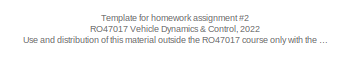
[diagram: root canvas - part 1/5, top left region]
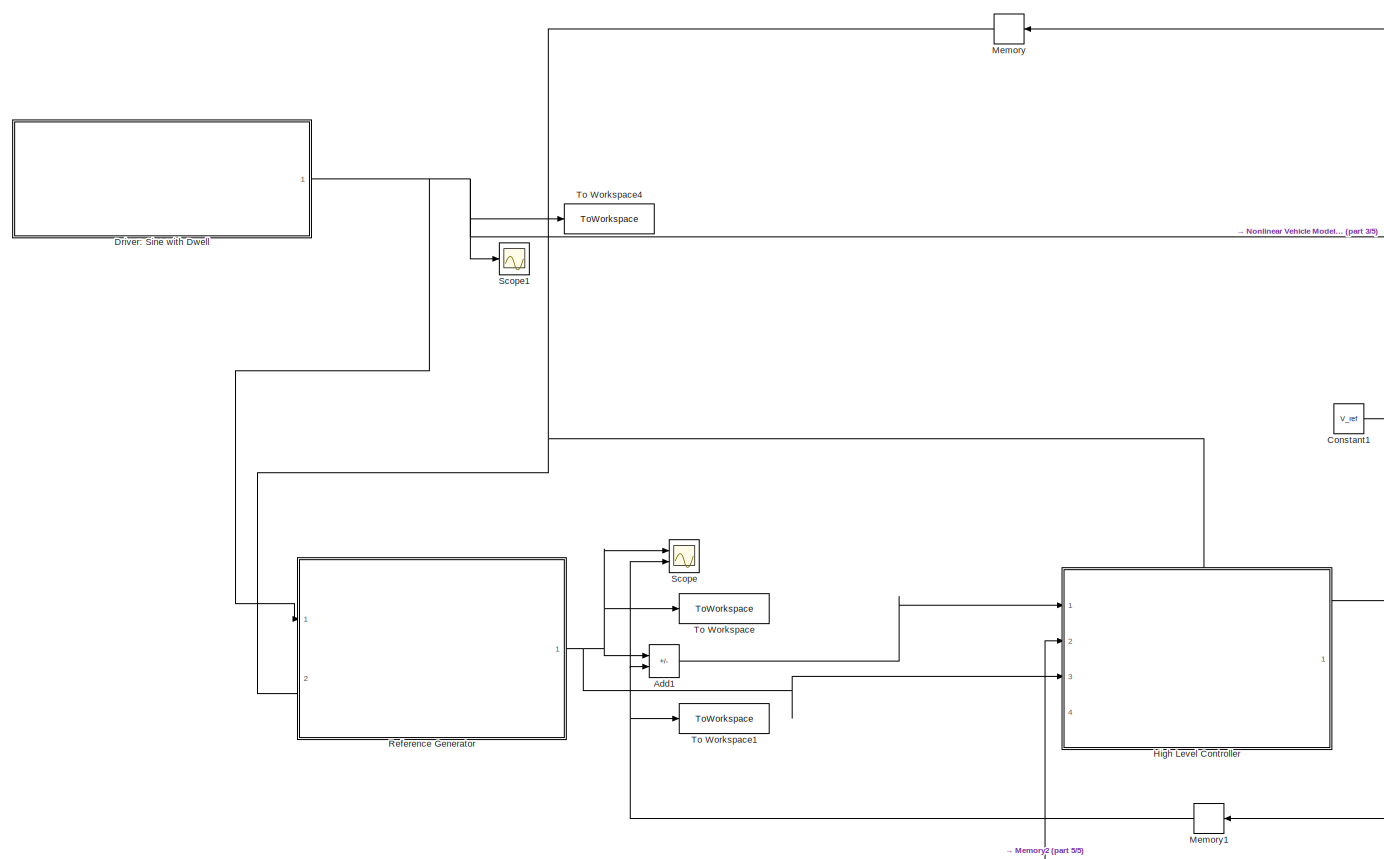
[diagram: root canvas - part 2/5, left side, full height]
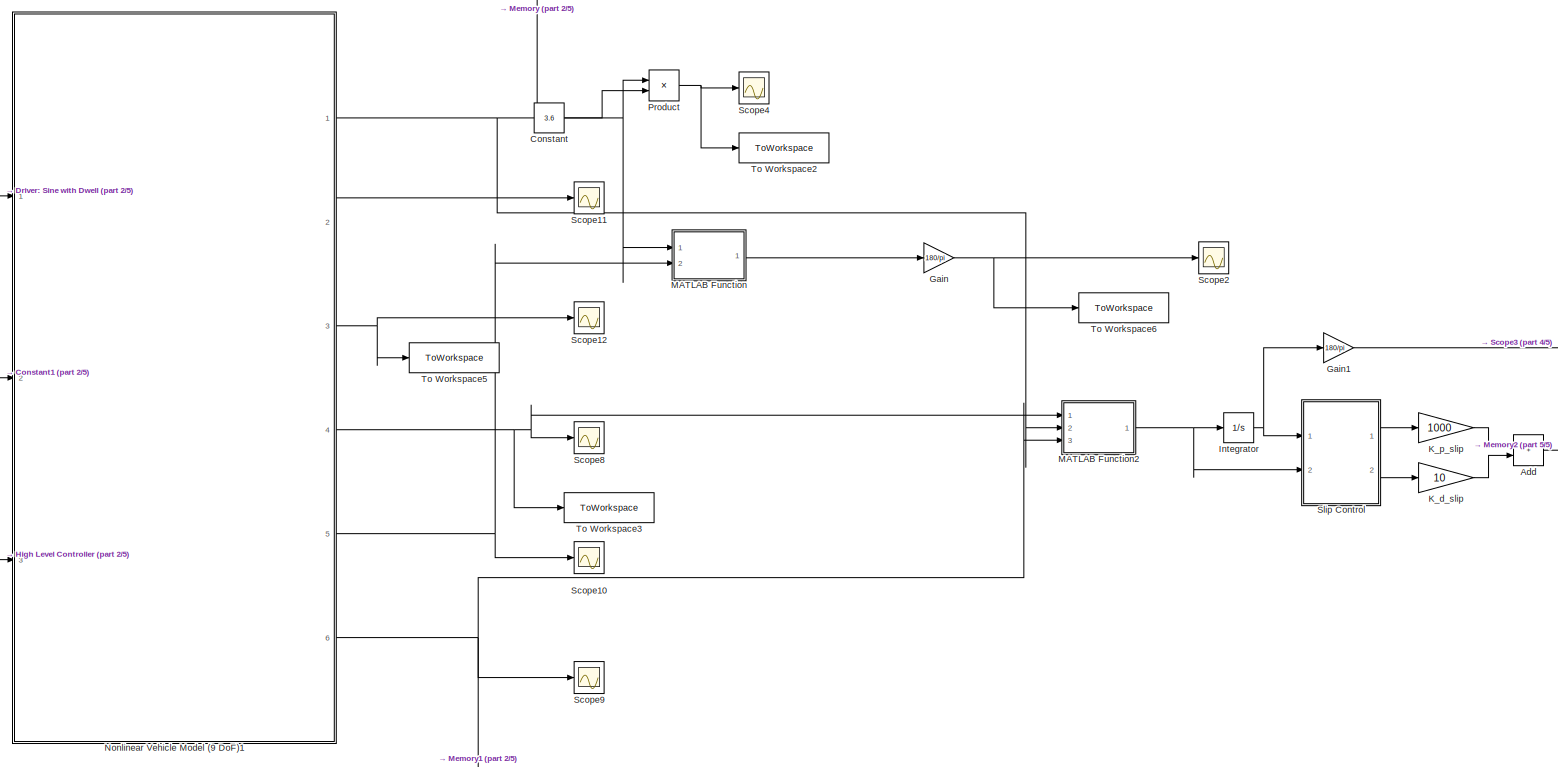
[diagram: root canvas - part 3/5, middle right region]
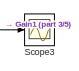
[diagram: root canvas - part 4/5, middle right region]
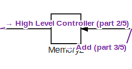
[diagram: root canvas - part 5/5, bottom center region]
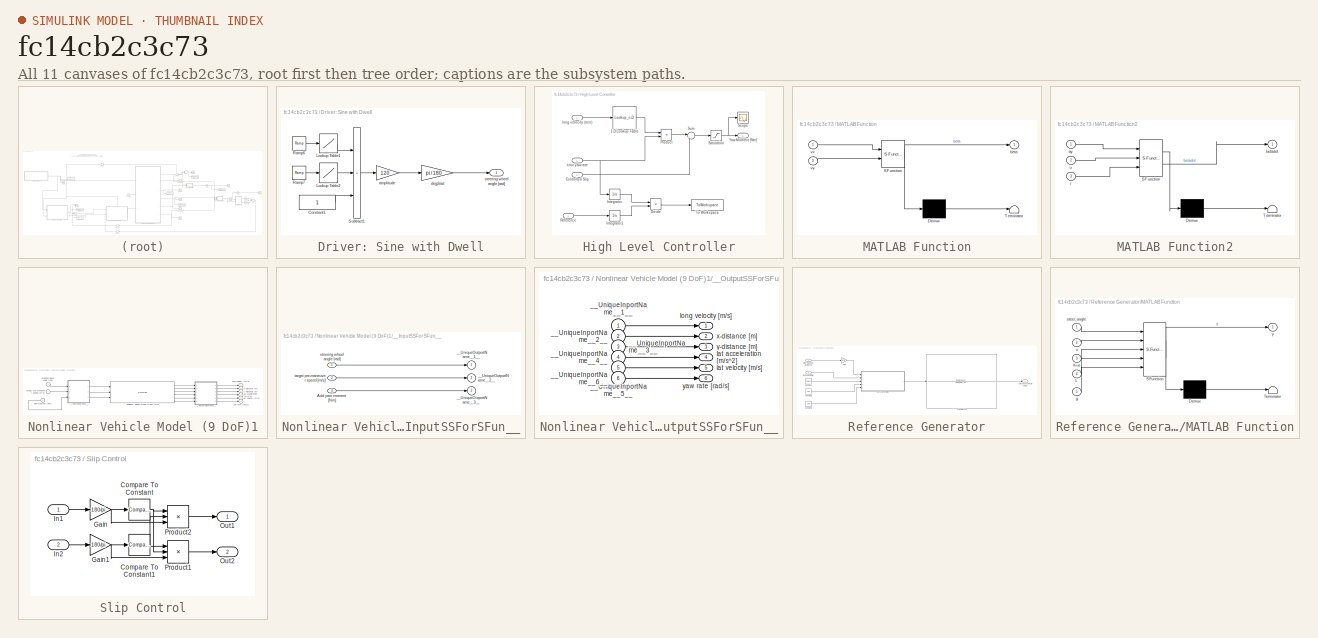
[diagram: thumbnail index - all 11 canvases of the model, root first then tree order]
MODEL slx_fc14cb2c3c73
KIND model
CONFIG AbsTol = auto
CONFIG EnableMultiTasking = on
CONFIG FixedStep = 1e-3
CONFIG MaxStep = auto
CONFIG MinStep = auto
CONFIG RelTol = 1e-3
CONFIG SampleTimeConstraint = Unconstrained
CONFIG SolverName = ode4
CONFIG StartTime = 0.0
CONFIG StopTime = 20
BLOCK [Sum] Add
  IconShape = rectangular
  Ports = [2, 1]
BLOCK [Sum] Add1
  IconShape = rectangular
  Inputs = +-
  Ports = [2, 1]
BLOCK [Constant] Constant
  Value = 3.6
BLOCK [Constant] Constant1
  Value = V_ref
BLOCK [SubSystem] Driver: Sine with Dwell
  Ports = [0, 1]
  RequestExecContextInheritance = off
BLOCK [Constant] Driver: Sine with Dwell/Constant1
BLOCK [Lookup] Driver: Sine with Dwell/Lookup Table1
  InputValues = [0:0.1:3*pi/2 3*pi/2+eps]*0.7
  LookUpMeth = Interpolation-Use End Values
  SaturateOnIntegerOverflow = off
  Table = sin([0:0.1:3*pi/2 3*pi/2+eps])
BLOCK [Lookup] Driver: Sine with Dwell/Lookup Table2
  InputValues = [3*pi/2:0.1:2*pi 2*pi+eps]*0.7
  LookUpMeth = Interpolation-Use End Values
  SaturateOnIntegerOverflow = off
  Table = sin([3*pi/2:0.1:2*pi 2*pi+eps])
BLOCK [Reference] Driver: Sine with Dwell/Ramp6  REF=simulink/Sources/Ramp
  Ports = [0, 1]
  SourceBlock = simulink/Sources/Ramp
  SourceProductBaseCode = SL
  SourceType = Ramp
BLOCK [Reference] Driver: Sine with Dwell/Ramp7  REF=simulink/Sources/Ramp
  Ports = [0, 1]
  SourceBlock = simulink/Sources/Ramp
  SourceProductBaseCode = SL
  SourceType = Ramp
BLOCK [Sum] Driver: Sine with Dwell/Subtract1
  IconShape = rectangular
  Inputs = +++
  Ports = [3, 1]
BLOCK [Gain] Driver: Sine with Dwell/amplitude
  Gain = 120
BLOCK [Gain] Driver: Sine with Dwell/deg2rad
  Gain = pi / 180
BLOCK [Outport] Driver: Sine with Dwell/steering wheel angle [rad]
  VectorParamsAs1DForOutWhenUnconnected = off
BLOCK [Gain] Gain
  Gain = 180/pi
BLOCK [Gain] Gain1
  Gain = 180/pi
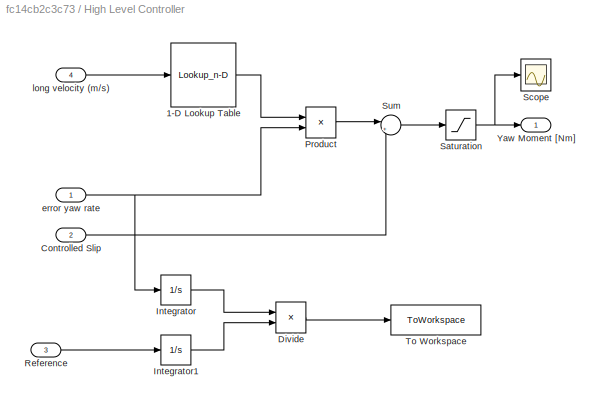
BLOCK [SubSystem] High Level Controller
  PortSchema = {"entries":[{"content":{"sides":[{"content":{"connectorIds":["In1","In2","In3"]},"type":"ConnectorPlacement.EquallySpacedRectSide","uuid":"b384b34b-9bc0-4dc4-b497-a1a499aa981c"},{"content":{"connectorIds":["Out1"],"side":"RIGHT"},"type":"ConnectorPlacement.EquallySpacedRectSide","uuid":"f3fdbba3-f0c8-4c56-b5d3-57c2637e329a"},{"content":{"connectorIds":["In4"],"side":"TOP"},"type":"ConnectorPlaceme...<+257ch>
  Ports = [4, 1]
  RequestExecContextInheritance = off
BLOCK [Lookup_n-D] High Level Controller/1-D Lookup Table
  BreakpointsForDimension1 = LQR_Vx_ref
  InputPortMap = u0
  InternalRulePriority = Speed
  NumberOfTableDimensions = 1
  Ports = [1, 1]
  RndMeth = Simplest
  Table = LQR_K(2,:)
BLOCK [Inport] High Level Controller/Controlled Slip
  Port = 2
BLOCK [Product] High Level Controller/Divide
  Inputs = */
  Ports = [2, 1]
BLOCK [Integrator] High Level Controller/Integrator
  Ports = [1, 1]
BLOCK [Integrator] High Level Controller/Integrator1
  Ports = [1, 1]
BLOCK [Product] High Level Controller/Product
  Ports = [2, 1]
BLOCK [Inport] High Level Controller/Reference
  Port = 3
BLOCK [Saturate] High Level Controller/Saturation
  LowerLimit = -8000
  UpperLimit = 8000
BLOCK [Scope] High Level Controller/Scope
  Floating = off
  NumInputPorts = 1
  Ports = [1]
  ScopeSpecificationString = Simulink.scopes.TimeScopeBlockCfg('CurrentConfiguration', extmgr.ConfigurationSet(extmgr.Configuration('Core','General UI',true),extmgr.Configuration('Core','Source UI',true),extmgr.Configuration('Sources','WiredSimulink',true,'DataLoggingVariableName','ScopeData1'),extmgr.Configuration('Visuals','Time Domain',true,'SerializedDisplays',{struct('MinYLimReal','-812.5','MaxYLimReal','2312.5','YLabelR...<+1363ch>
BLOCK [Sum] High Level Controller/Sum
  Inputs = |++
  Ports = [2, 1]
BLOCK [ToWorkspace] High Level Controller/To Workspace
  FixptAsFi = on
  MaxDataPoints = inf
  Ports = [1]
  SampleTime = -1
  SaveFormat = Timeseries
  VariableName = yaw_velocity_metric_pd
BLOCK [Outport] High Level Controller/Yaw Moment [Nm]
  VectorParamsAs1DForOutWhenUnconnected = off
BLOCK [Inport] High Level Controller/error yaw rate
BLOCK [Inport] High Level Controller/long velocity (m//s)
  Port = 4
BLOCK [Integrator] Integrator
  Ports = [1, 1]
BLOCK [Gain] K_d_slip
  Gain = 10
BLOCK [Gain] K_p_slip
  Gain = 1000
BLOCK [SubSystem] MATLAB Function
  ErrorFcn = Stateflow.Translate.translate
  PermitHierarchicalResolution = ExplicitOnly
  Ports = [2, 1]
  RequestExecContextInheritance = off
  SFBlockType = MATLAB Function
  TreatAsAtomicUnit = on
BLOCK [Demux] MATLAB Function/ Demux 
  Outputs = 1
  Ports = [1, 1]
BLOCK [S-Function] MATLAB Function/ SFunction 
  EnableBusSupport = on
  FunctionName = sf_sfun
  PortCounts = [2 2]
  Ports = [2, 2]
  SFcnIsStateOwnerBlock = off
  SFunctionDeploymentMode = off
  Tag = Stateflow S-Function 2
BLOCK [Terminator] MATLAB Function/ Terminator 
BLOCK [Outport] MATLAB Function/beta
BLOCK [Inport] MATLAB Function/vx
BLOCK [Inport] MATLAB Function/vy
  Port = 2
BLOCK [SubSystem] MATLAB Function2
  ErrorFcn = Stateflow.Translate.translate
  PermitHierarchicalResolution = ExplicitOnly
  Ports = [3, 1]
  RequestExecContextInheritance = off
  SFBlockType = MATLAB Function
  TreatAsAtomicUnit = on
BLOCK [Demux] MATLAB Function2/ Demux 
  Outputs = 1
  Ports = [1, 1]
BLOCK [S-Function] MATLAB Function2/ SFunction 
  EnableBusSupport = on
  FunctionName = sf_sfun
  PortCounts = [3 2]
  Ports = [3, 2]
  SFcnIsStateOwnerBlock = off
  SFunctionDeploymentMode = off
  Tag = Stateflow S-Function 3
BLOCK [Terminator] MATLAB Function2/ Terminator 
BLOCK [Inport] MATLAB Function2/ay
BLOCK [Outport] MATLAB Function2/betadot
BLOCK [Inport] MATLAB Function2/r
  Port = 3
BLOCK [Inport] MATLAB Function2/u
  Port = 2
BLOCK [Memory] Memory
BLOCK [Memory] Memory1
BLOCK [Memory] Memory2
BLOCK [SubSystem] Nonlinear Vehicle Model (9 DoF)1
  Ports = [3, 6]
  RequestExecContextInheritance = off
BLOCK [S-Function] Nonlinear Vehicle Model (9 DoF)1/Nonlinear Vehicle Model (9 DoF)_sfcn
  CopyFcn = if ~strcmp(get_param(gcb,'Linkstatus'),'none') && ...\n~strcmp(get_param(gcb,'Linkstatus'),'implicit')      \n  set_param(gcb,'LinkStatus','none');                \nend
  EnableBusSupport = off
  FunctionName = Nonlinear_sf
  Ports = [3, 6]
  SFcnIsStateOwnerBlock = off
  SFunctionDeploymentMode = off
BLOCK [Inport] Nonlinear Vehicle Model (9 DoF)1/Yaw moment [Nm]
  Port = 3
BLOCK [SubSystem] Nonlinear Vehicle Model (9 DoF)1/__InputSSForSFun__
  PermitHierarchicalResolution = ExplicitOnly
  Ports = [3, 3]
  RequestExecContextInheritance = off
BLOCK [Inport] Nonlinear Vehicle Model (9 DoF)1/__InputSSForSFun__/Add yaw moment [Nm]
  Port = 3
BLOCK [Outport] Nonlinear Vehicle Model (9 DoF)1/__InputSSForSFun__/__UniqueOutportName__1__
BLOCK [Outport] Nonlinear Vehicle Model (9 DoF)1/__InputSSForSFun__/__UniqueOutportName__2__
  Port = 2
BLOCK [Outport] Nonlinear Vehicle Model (9 DoF)1/__InputSSForSFun__/__UniqueOutportName__3__
  Port = 3
BLOCK [Inport] Nonlinear Vehicle Model (9 DoF)1/__InputSSForSFun__/steering wheel angle [rad]
BLOCK [Inport] Nonlinear Vehicle Model (9 DoF)1/__InputSSForSFun__/target pre-maneuver speed [m//s]
  Port = 2
BLOCK [SubSystem] Nonlinear Vehicle Model (9 DoF)1/__OutputSSForSFun__
  PermitHierarchicalResolution = ExplicitOnly
  Ports = [6, 6]
  RequestExecContextInheritance = off
BLOCK [Inport] Nonlinear Vehicle Model (9 DoF)1/__OutputSSForSFun__/__UniqueInportName__1__
BLOCK [Inport] Nonlinear Vehicle Model (9 DoF)1/__OutputSSForSFun__/__UniqueInportName__2__
  Port = 2
BLOCK [Inport] Nonlinear Vehicle Model (9 DoF)1/__OutputSSForSFun__/__UniqueInportName__3__
  Port = 3
BLOCK [Inport] Nonlinear Vehicle Model (9 DoF)1/__OutputSSForSFun__/__UniqueInportName__4__
  Port = 4
BLOCK [Inport] Nonlinear Vehicle Model (9 DoF)1/__OutputSSForSFun__/__UniqueInportName__5__
  Port = 5
BLOCK [Inport] Nonlinear Vehicle Model (9 DoF)1/__OutputSSForSFun__/__UniqueInportName__6__
  Port = 6
BLOCK [Outport] Nonlinear Vehicle Model (9 DoF)1/__OutputSSForSFun__/lat acceleration [m//s^2]
  Port = 4
  VectorParamsAs1DForOutWhenUnconnected = off
BLOCK [Outport] Nonlinear Vehicle Model (9 DoF)1/__OutputSSForSFun__/lat velocity [m//s]
  Port = 5
  VectorParamsAs1DForOutWhenUnconnected = off
BLOCK [Outport] Nonlinear Vehicle Model (9 DoF)1/__OutputSSForSFun__/long velocity [m//s]
  VectorParamsAs1DForOutWhenUnconnected = off
BLOCK [Outport] Nonlinear Vehicle Model (9 DoF)1/__OutputSSForSFun__/x-distance [m]
  Port = 2
  VectorParamsAs1DForOutWhenUnconnected = off
BLOCK [Outport] Nonlinear Vehicle Model (9 DoF)1/__OutputSSForSFun__/y-distance [m]
  Port = 3
  VectorParamsAs1DForOutWhenUnconnected = off
BLOCK [Outport] Nonlinear Vehicle Model (9 DoF)1/__OutputSSForSFun__/yaw rate [rad//s]
  Port = 6
  VectorParamsAs1DForOutWhenUnconnected = off
BLOCK [Outport] Nonlinear Vehicle Model (9 DoF)1/lat acceleration [m//s^2]
  Port = 4
  VectorParamsAs1DForOutWhenUnconnected = off
BLOCK [Outport] Nonlinear Vehicle Model (9 DoF)1/lat velocity [m//s]
  Port = 5
  VectorParamsAs1DForOutWhenUnconnected = off
BLOCK [Outport] Nonlinear Vehicle Model (9 DoF)1/long velocity [m//s]
  VectorParamsAs1DForOutWhenUnconnected = off
BLOCK [Inport] Nonlinear Vehicle Model (9 DoF)1/steering wheel angle [rad]
BLOCK [Inport] Nonlinear Vehicle Model (9 DoF)1/target pre-maneuver speed [m//s]
  Port = 2
BLOCK [Outport] Nonlinear Vehicle Model (9 DoF)1/x-distance [m]
  Port = 2
  VectorParamsAs1DForOutWhenUnconnected = off
BLOCK [Outport] Nonlinear Vehicle Model (9 DoF)1/y-distance [m]
  Port = 3
  VectorParamsAs1DForOutWhenUnconnected = off
BLOCK [Outport] Nonlinear Vehicle Model (9 DoF)1/yaw rate [rad//s]
  Port = 6
  VectorParamsAs1DForOutWhenUnconnected = off
BLOCK [Product] Product
  Ports = [2, 1]
BLOCK [SubSystem] Reference Generator
  Ports = [2, 1]
  RequestExecContextInheritance = off
BLOCK [Constant] Reference Generator/Constant
  Value = par.Kus
BLOCK [Constant] Reference Generator/Constant1
  Value = par.L
BLOCK [Constant] Reference Generator/Constant2
  Value = par.g
BLOCK [Gain] Reference Generator/Gain
  Gain = 1/par.i_steer
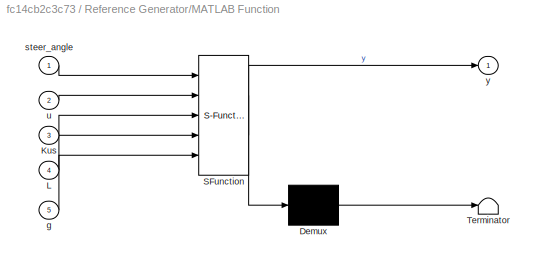
BLOCK [SubSystem] Reference Generator/MATLAB Function
  ErrorFcn = Stateflow.Translate.translate
  PermitHierarchicalResolution = ExplicitOnly
  Ports = [5, 1]
  RequestExecContextInheritance = off
  SFBlockType = MATLAB Function
  TreatAsAtomicUnit = on
BLOCK [Demux] Reference Generator/MATLAB Function/ Demux 
  Outputs = 1
  Ports = [1, 1]
BLOCK [S-Function] Reference Generator/MATLAB Function/ SFunction 
  EnableBusSupport = on
  FunctionName = sf_sfun
  PortCounts = [5 2]
  Ports = [5, 2]
  SFcnIsStateOwnerBlock = off
  SFunctionDeploymentMode = off
  Tag = Stateflow S-Function 1
BLOCK [Terminator] Reference Generator/MATLAB Function/ Terminator 
BLOCK [Inport] Reference Generator/MATLAB Function/Kus
  Port = 3
BLOCK [Inport] Reference Generator/MATLAB Function/L
  Port = 4
BLOCK [Inport] Reference Generator/MATLAB Function/g
  Port = 5
BLOCK [Inport] Reference Generator/MATLAB Function/steer_angle
BLOCK [Inport] Reference Generator/MATLAB Function/u
  Port = 2
BLOCK [Outport] Reference Generator/MATLAB Function/y
BLOCK [TransferFcn] Reference Generator/Transfer Fcn
  Denominator = [coeff_den_s2 coeff_den_s 1]
  Numerator = [coeff_num_s 1]
BLOCK [Inport] Reference Generator/long velocity [m//s]
  Port = 2
BLOCK [Outport] Reference Generator/reference yaw rate [rad//s]
  VectorParamsAs1DForOutWhenUnconnected = off
BLOCK [Inport] Reference Generator/steering wheel angle [rad]
BLOCK [Scope] Scope
  Floating = off
  NumInputPorts = 2
  Ports = [2]
  ScopeSpecificationString = Simulink.scopes.TimeScopeBlockCfg('CurrentConfiguration', extmgr.ConfigurationSet(extmgr.Configuration('Core','General UI',true),extmgr.Configuration('Core','Source UI',true),extmgr.Configuration('Sources','WiredSimulink',true,'DataLoggingVariableName','ScopeData1'),extmgr.Configuration('Visuals','Time Domain',true,'SerializedDisplays',{struct('MinYLimReal','-1.68729','MaxYLimReal','1.57864','YLab...<+1461ch>
BLOCK [Scope] Scope1
  Floating = off
  NumInputPorts = 1
  Ports = [1]
  ScopeSpecificationString = Simulink.scopes.TimeScopeBlockCfg('CurrentConfiguration', extmgr.ConfigurationSet(extmgr.Configuration('Core','General UI',true),extmgr.Configuration('Core','Source UI',true),extmgr.Configuration('Sources','WiredSimulink',true,'DataLoggingVariableName','ScopeData1'),extmgr.Configuration('Visuals','Time Domain',true,'SerializedDisplays',{struct('MinYLimReal','-2.61787','MaxYLimReal','2.61688','YLab...<+1455ch>
BLOCK [Scope] Scope10
  Floating = off
  NumInputPorts = 1
  Ports = [1]
  ScopeSpecificationString = Simulink.scopes.TimeScopeBlockCfg('CurrentConfiguration', extmgr.ConfigurationSet(extmgr.Configuration('Core','General UI',true),extmgr.Configuration('Core','Source UI',true),extmgr.Configuration('Sources','WiredSimulink',true,'DataLoggingVariableName','ScopeData2'),extmgr.Configuration('Visuals','Time Domain',true,'SerializedDisplays',{struct('MinYLimReal','-1.51646','MaxYLimReal','1.66759','YLab...<+1422ch>
BLOCK [Scope] Scope11
  Floating = off
  NumInputPorts = 1
  Ports = [1]
  ScopeSpecificationString = Simulink.scopes.TimeScopeBlockCfg('CurrentConfiguration', extmgr.ConfigurationSet(extmgr.Configuration('Core','General UI',true),extmgr.Configuration('Core','Source UI',true),extmgr.Configuration('Sources','WiredSimulink',true,'DataLoggingVariableName','ScopeData3'),extmgr.Configuration('Visuals','Time Domain',true,'SerializedDisplays',{struct('MinYLimReal','-36.5234','MaxYLimReal','328.7106','YLa...<+1426ch>
BLOCK [Scope] Scope12
  Floating = off
  NumInputPorts = 1
  Ports = [1]
  ScopeSpecificationString = Simulink.scopes.TimeScopeBlockCfg('CurrentConfiguration', extmgr.ConfigurationSet(extmgr.Configuration('Core','General UI',true),extmgr.Configuration('Core','Source UI',true),extmgr.Configuration('Sources','WiredSimulink',true,'DataLoggingVariableName','ScopeData4'),extmgr.Configuration('Visuals','Time Domain',true,'SerializedDisplays',{struct('MinYLimReal','-11.73151','MaxYLimReal','8.46333','YLa...<+1474ch>
BLOCK [Scope] Scope2
  Floating = off
  NumInputPorts = 1
  Ports = [1]
  ScopeSpecificationString = Simulink.scopes.TimeScopeBlockCfg('CurrentConfiguration', extmgr.ConfigurationSet(extmgr.Configuration('Core','General UI',true),extmgr.Configuration('Core','Source UI',true),extmgr.Configuration('Sources','WiredSimulink',true,'DataLoggingVariableName','ScopeData1'),extmgr.Configuration('Visuals','Time Domain',true,'SerializedDisplays',{struct('MinYLimReal','-61.84291','MaxYLimReal','8.03478','YLa...<+1440ch>
BLOCK [Scope] Scope3
  Floating = off
  NumInputPorts = 1
  Ports = [1]
  ScopeSpecificationString = Simulink.scopes.TimeScopeBlockCfg('CurrentConfiguration', extmgr.ConfigurationSet(extmgr.Configuration('Core','General UI',true),extmgr.Configuration('Core','Source UI',true),extmgr.Configuration('Sources','WiredSimulink',true,'DataLoggingVariableName','ScopeData1'),extmgr.Configuration('Visuals','Time Domain',true,'SerializedDisplays',{struct('MinYLimReal','-51.10368','MaxYLimReal','103.12141','Y...<+1447ch>
BLOCK [Scope] Scope4
  Floating = off
  NumInputPorts = 1
  Ports = [1]
  ScopeSpecificationString = Simulink.scopes.TimeScopeBlockCfg('CurrentConfiguration', extmgr.ConfigurationSet(extmgr.Configuration('Core','General UI',true),extmgr.Configuration('Core','Source UI',true),extmgr.Configuration('Sources','WiredSimulink',true,'DataLoggingVariableName','ScopeData5'),extmgr.Configuration('Visuals','Time Domain',true,'SerializedDisplays',{struct('MinYLimReal','43.69848','MaxYLimReal','106.3878','YLa...<+1445ch>
BLOCK [Scope] Scope8
  Floating = off
  NumInputPorts = 1
  Ports = [1]
  ScopeSpecificationString = Simulink.scopes.TimeScopeBlockCfg('CurrentConfiguration', extmgr.ConfigurationSet(extmgr.Configuration('Core','General UI',true),extmgr.Configuration('Core','Source UI',true),extmgr.Configuration('Sources','WiredSimulink',true,'DataLoggingVariableName','ScopeData6'),extmgr.Configuration('Visuals','Time Domain',true,'SerializedDisplays',{struct('MinYLimReal','-12.87563','MaxYLimReal','15.98929','YL...<+1472ch>
BLOCK [Scope] Scope9
  Floating = off
  NumInputPorts = 1
  Ports = [1]
  ScopeSpecificationString = Simulink.scopes.TimeScopeBlockCfg('CurrentConfiguration', extmgr.ConfigurationSet(extmgr.Configuration('Core','General UI',true),extmgr.Configuration('Core','Source UI',true),extmgr.Configuration('Sources','WiredSimulink',true),extmgr.Configuration('Visuals','Time Domain',true,'SerializedDisplays',{struct('MinYLimReal','-0.97718','MaxYLimReal','1.00483','YLabelReal','','MinYLimMag','0.00000','MaxY...<+1408ch>
BLOCK [SubSystem] Slip Control
  Ports = [2, 2]
  RequestExecContextInheritance = off
BLOCK [Reference] Slip Control/Compare To Constant  REF=simulink/Logic and Bit
Operations/Compare
To Constant
  Ports = [1, 1]
  SourceBlock = simulink/Logic and Bit\nOperations/Compare\nTo Constant
  SourceProductBaseCode = SL
  SourceType = Compare To Constant
BLOCK [Reference] Slip Control/Compare To Constant1  REF=simulink/Logic and Bit
Operations/Compare
To Constant
  Ports = [1, 1]
  SourceBlock = simulink/Logic and Bit\nOperations/Compare\nTo Constant
  SourceProductBaseCode = SL
  SourceType = Compare To Constant
BLOCK [Gain] Slip Control/Gain
  Gain = 180/pi
BLOCK [Gain] Slip Control/Gain1
  Gain = 180/pi
BLOCK [Inport] Slip Control/In1
BLOCK [Inport] Slip Control/In2
  Port = 2
BLOCK [Outport] Slip Control/Out1
BLOCK [Outport] Slip Control/Out2
  Port = 2
BLOCK [Product] Slip Control/Product1
  Inputs = 3
  Ports = [3, 1]
BLOCK [Product] Slip Control/Product2
  Inputs = 3
  Ports = [3, 1]
BLOCK [ToWorkspace] To Workspace
  FixptAsFi = on
  MaxDataPoints = inf
  Ports = [1]
  SampleTime = -1
  SaveFormat = Timeseries
  VariableName = ref_yaw_pd
BLOCK [ToWorkspace] To Workspace1
  FixptAsFi = on
  MaxDataPoints = inf
  Ports = [1]
  SampleTime = -1
  SaveFormat = Timeseries
  VariableName = yaw_pd
BLOCK [ToWorkspace] To Workspace2
  FixptAsFi = on
  MaxDataPoints = inf
  Ports = [1]
  SampleTime = -1
  SaveFormat = Timeseries
  VariableName = long_vel
BLOCK [ToWorkspace] To Workspace3
  FixptAsFi = on
  MaxDataPoints = inf
  Ports = [1]
  SampleTime = -1
  SaveFormat = Timeseries
  VariableName = lat_acc_pd
BLOCK [ToWorkspace] To Workspace4
  FixptAsFi = on
  MaxDataPoints = inf
  Ports = [1]
  SampleTime = -1
  SaveFormat = Timeseries
  VariableName = steer_angle
BLOCK [ToWorkspace] To Workspace5
  FixptAsFi = on
  MaxDataPoints = inf
  Ports = [1]
  SampleTime = -1
  SaveFormat = Timeseries
  VariableName = ydist_pd
BLOCK [ToWorkspace] To Workspace6
  FixptAsFi = on
  MaxDataPoints = inf
  Ports = [1]
  SampleTime = -1
  SaveFormat = Timeseries
  VariableName = beta_pd
ANNOTATION (root): Template for homework assignment #2 RO47017 Vehicle Dynamics & Control, 2022 Use and distribution of this material outside the RO47017 course only with the permission of the course coordinator
LINE Add1:1 -> High Level Controller:1
LINE Add:1 -> Memory2:1
LINE Constant1:1 -> Nonlinear Vehicle Model (9 DoF)1:2
LINE Constant:1 -> Product:2
LINE Driver: Sine with Dwell/Constant1:1 -> Driver: Sine with Dwell/Subtract1:3
LINE Driver: Sine with Dwell/Lookup Table1:1 -> Driver: Sine with Dwell/Subtract1:1
LINE Driver: Sine with Dwell/Lookup Table2:1 -> Driver: Sine with Dwell/Subtract1:2
LINE Driver: Sine with Dwell/Ramp6:1 -> Driver: Sine with Dwell/Lookup Table1:1
LINE Driver: Sine with Dwell/Ramp7:1 -> Driver: Sine with Dwell/Lookup Table2:1
LINE Driver: Sine with Dwell/Subtract1:1 -> Driver: Sine with Dwell/amplitude:1
LINE Driver: Sine with Dwell/amplitude:1 -> Driver: Sine with Dwell/deg2rad:1
LINE Driver: Sine with Dwell/deg2rad:1 -> Driver: Sine with Dwell/steering wheel angle [rad]:1
NET Driver: Sine with Dwell:1 -> Nonlinear Vehicle Model (9 DoF)1:1, Reference Generator:1, Scope1:1, To Workspace4:1
LINE Gain1:1 -> Scope3:1
NET Gain:1 -> Scope2:1, To Workspace6:1
LINE High Level Controller/1-D Lookup Table:1 -> High Level Controller/Product:1
LINE High Level Controller/Controlled Slip:1 -> High Level Controller/Sum:2
LINE High Level Controller/Divide:1 -> High Level Controller/To Workspace:1
LINE High Level Controller/Integrator1:1 -> High Level Controller/Divide:2
LINE High Level Controller/Integrator:1 -> High Level Controller/Divide:1
LINE High Level Controller/Product:1 -> High Level Controller/Sum:1
LINE High Level Controller/Reference:1 -> High Level Controller/Integrator1:1
NET High Level Controller/Saturation:1 -> High Level Controller/Scope:1, High Level Controller/Yaw Moment [Nm]:1
LINE High Level Controller/Sum:1 -> High Level Controller/Saturation:1
NET High Level Controller/error yaw rate:1 -> High Level Controller/Integrator:1, High Level Controller/Product:2
LINE High Level Controller/long velocity (m//s):1 -> High Level Controller/1-D Lookup Table:1
LINE High Level Controller:1 -> Nonlinear Vehicle Model (9 DoF)1:3
NET Integrator:1 -> Gain1:1, Slip Control:1
LINE K_d_slip:1 -> Add:2
LINE K_p_slip:1 -> Add:1
NET MATLAB Function2:1 -> Integrator:1, Slip Control:2
LINE MATLAB Function:1 -> Gain:1
NET Memory1:1 -> Add1:2, Scope:2, To Workspace1:1
LINE Memory2:1 -> High Level Controller:2
NET Memory:1 -> High Level Controller:4, Reference Generator:2
LINE Nonlinear Vehicle Model (9 DoF)1/Nonlinear Vehicle Model (9 DoF)_sfcn:1 -> Nonlinear Vehicle Model (9 DoF)1/__OutputSSForSFun__:1
LINE Nonlinear Vehicle Model (9 DoF)1/Nonlinear Vehicle Model (9 DoF)_sfcn:2 -> Nonlinear Vehicle Model (9 DoF)1/__OutputSSForSFun__:2
LINE Nonlinear Vehicle Model (9 DoF)1/Nonlinear Vehicle Model (9 DoF)_sfcn:3 -> Nonlinear Vehicle Model (9 DoF)1/__OutputSSForSFun__:3
LINE Nonlinear Vehicle Model (9 DoF)1/Nonlinear Vehicle Model (9 DoF)_sfcn:4 -> Nonlinear Vehicle Model (9 DoF)1/__OutputSSForSFun__:4
LINE Nonlinear Vehicle Model (9 DoF)1/Nonlinear Vehicle Model (9 DoF)_sfcn:5 -> Nonlinear Vehicle Model (9 DoF)1/__OutputSSForSFun__:5
LINE Nonlinear Vehicle Model (9 DoF)1/Nonlinear Vehicle Model (9 DoF)_sfcn:6 -> Nonlinear Vehicle Model (9 DoF)1/__OutputSSForSFun__:6
LINE Nonlinear Vehicle Model (9 DoF)1/Yaw moment [Nm]:1 -> Nonlinear Vehicle Model (9 DoF)1/__InputSSForSFun__:3
LINE Nonlinear Vehicle Model (9 DoF)1/__InputSSForSFun__/Add yaw moment [Nm]:1 -> Nonlinear Vehicle Model (9 DoF)1/__InputSSForSFun__/__UniqueOutportName__3__:1
LINE Nonlinear Vehicle Model (9 DoF)1/__InputSSForSFun__/steering wheel angle [rad]:1 -> Nonlinear Vehicle Model (9 DoF)1/__InputSSForSFun__/__UniqueOutportName__1__:1
LINE Nonlinear Vehicle Model (9 DoF)1/__InputSSForSFun__/target pre-maneuver speed [m//s]:1 -> Nonlinear Vehicle Model (9 DoF)1/__InputSSForSFun__/__UniqueOutportName__2__:1
LINE Nonlinear Vehicle Model (9 DoF)1/__InputSSForSFun__:1 -> Nonlinear Vehicle Model (9 DoF)1/Nonlinear Vehicle Model (9 DoF)_sfcn:1
LINE Nonlinear Vehicle Model (9 DoF)1/__InputSSForSFun__:2 -> Nonlinear Vehicle Model (9 DoF)1/Nonlinear Vehicle Model (9 DoF)_sfcn:2
LINE Nonlinear Vehicle Model (9 DoF)1/__InputSSForSFun__:3 -> Nonlinear Vehicle Model (9 DoF)1/Nonlinear Vehicle Model (9 DoF)_sfcn:3
LINE Nonlinear Vehicle Model (9 DoF)1/__OutputSSForSFun__/__UniqueInportName__1__:1 -> Nonlinear Vehicle Model (9 DoF)1/__OutputSSForSFun__/long velocity [m//s]:1
LINE Nonlinear Vehicle Model (9 DoF)1/__OutputSSForSFun__/__UniqueInportName__2__:1 -> Nonlinear Vehicle Model (9 DoF)1/__OutputSSForSFun__/x-distance [m]:1
LINE Nonlinear Vehicle Model (9 DoF)1/__OutputSSForSFun__/__UniqueInportName__3__:1 -> Nonlinear Vehicle Model (9 DoF)1/__OutputSSForSFun__/y-distance [m]:1
LINE Nonlinear Vehicle Model (9 DoF)1/__OutputSSForSFun__/__UniqueInportName__4__:1 -> Nonlinear Vehicle Model (9 DoF)1/__OutputSSForSFun__/lat acceleration [m//s^2]:1
LINE Nonlinear Vehicle Model (9 DoF)1/__OutputSSForSFun__/__UniqueInportName__5__:1 -> Nonlinear Vehicle Model (9 DoF)1/__OutputSSForSFun__/lat velocity [m//s]:1
LINE Nonlinear Vehicle Model (9 DoF)1/__OutputSSForSFun__/__UniqueInportName__6__:1 -> Nonlinear Vehicle Model (9 DoF)1/__OutputSSForSFun__/yaw rate [rad//s]:1
LINE Nonlinear Vehicle Model (9 DoF)1/__OutputSSForSFun__:1 -> Nonlinear Vehicle Model (9 DoF)1/long velocity [m//s]:1
LINE Nonlinear Vehicle Model (9 DoF)1/__OutputSSForSFun__:2 -> Nonlinear Vehicle Model (9 DoF)1/x-distance [m]:1
LINE Nonlinear Vehicle Model (9 DoF)1/__OutputSSForSFun__:3 -> Nonlinear Vehicle Model (9 DoF)1/y-distance [m]:1
LINE Nonlinear Vehicle Model (9 DoF)1/__OutputSSForSFun__:4 -> Nonlinear Vehicle Model (9 DoF)1/lat acceleration [m//s^2]:1
LINE Nonlinear Vehicle Model (9 DoF)1/__OutputSSForSFun__:5 -> Nonlinear Vehicle Model (9 DoF)1/lat velocity [m//s]:1
LINE Nonlinear Vehicle Model (9 DoF)1/__OutputSSForSFun__:6 -> Nonlinear Vehicle Model (9 DoF)1/yaw rate [rad//s]:1
LINE Nonlinear Vehicle Model (9 DoF)1/steering wheel angle [rad]:1 -> Nonlinear Vehicle Model (9 DoF)1/__InputSSForSFun__:1
LINE Nonlinear Vehicle Model (9 DoF)1/target pre-maneuver speed [m//s]:1 -> Nonlinear Vehicle Model (9 DoF)1/__InputSSForSFun__:2
NET Nonlinear Vehicle Model (9 DoF)1:1 -> MATLAB Function2:2, MATLAB Function:1, Memory:1, Product:1
LINE Nonlinear Vehicle Model (9 DoF)1:2 -> Scope11:1
NET Nonlinear Vehicle Model (9 DoF)1:3 -> Scope12:1, To Workspace5:1
NET Nonlinear Vehicle Model (9 DoF)1:4 -> MATLAB Function2:1, Scope8:1, To Workspace3:1
NET Nonlinear Vehicle Model (9 DoF)1:5 -> MATLAB Function:2, Scope10:1
NET Nonlinear Vehicle Model (9 DoF)1:6 -> MATLAB Function2:3, Memory1:1, Scope9:1
NET Product:1 -> Scope4:1, To Workspace2:1
LINE Reference Generator/Constant1:1 -> Reference Generator/MATLAB Function:4
LINE Reference Generator/Constant2:1 -> Reference Generator/MATLAB Function:5
LINE Reference Generator/Constant:1 -> Reference Generator/MATLAB Function:3
LINE Reference Generator/Gain:1 -> Reference Generator/MATLAB Function:1
LINE Reference Generator/MATLAB Function:1 -> Reference Generator/Transfer Fcn:1
LINE Reference Generator/Transfer Fcn:1 -> Reference Generator/reference yaw rate [rad//s]:1
LINE Reference Generator/long velocity [m//s]:1 -> Reference Generator/MATLAB Function:2
LINE Reference Generator/steering wheel angle [rad]:1 -> Reference Generator/Gain:1
NET Reference Generator:1 -> Add1:1, High Level Controller:3, Scope:1, To Workspace:1
NET Slip Control/Compare To Constant1:1 -> Slip Control/Product1:1, Slip Control/Product2:2
NET Slip Control/Compare To Constant:1 -> Slip Control/Product1:2, Slip Control/Product2:1
NET Slip Control/Gain1:1 -> Slip Control/Compare To Constant1:1, Slip Control/Product1:3
NET Slip Control/Gain:1 -> Slip Control/Compare To Constant:1, Slip Control/Product2:3
LINE Slip Control/In1:1 -> Slip Control/Gain:1
LINE Slip Control/In2:1 -> Slip Control/Gain1:1
LINE Slip Control/Product1:1 -> Slip Control/Out2:1
LINE Slip Control/Product2:1 -> Slip Control/Out1:1
LINE Slip Control:1 -> K_p_slip:1
LINE Slip Control:2 -> K_d_slip:1
note: NET lines group one-source signal fan-out (src -> all destinations, sorted); 1:1 wires keep LINE
CHART Reference Generator/MATLAB Function states=1 transitions=1
  STATE_LABEL 'eML_blk_kernel()'
  STATE_LABEL 'SCRIPT:\nfunction y = fcn(steer_angle, u, Kus, L, g)\n    y = ( u / (L + ((Kus * u * u) / g ))) * steer_angle;\nend \n'
CHART MATLAB Function states=1 transitions=1
  STATE_LABEL 'eML_blk_kernel()'
  STATE_LABEL 'SCRIPT:\nfunction beta = sideslip(vx,vy)\n\nbeta = atan(vy/vx);\n\nend\n'
CHART MATLAB Function2 states=1 transitions=1
  STATE_LABEL 'eML_blk_kernel()'
  STATE_LABEL 'SCRIPT:\nfunction betadot = bd(ay,u,r)\nbetadot = (ay/u)-r ;\n\n% if(abs(beta) >= 1*pi/180 && abs(betadot) >= 5*pi/180)\n%     Kp = 25e5; Ki = 1e3 ;Kd = 1e3;\n% else\n%     Kp = 0; Kd = 0; Ki = 0;\n% end\n\nend\n'
CHART  states=0 transitions=0
CHART  states=0 transitions=0
CHART  states=0 transitions=0
